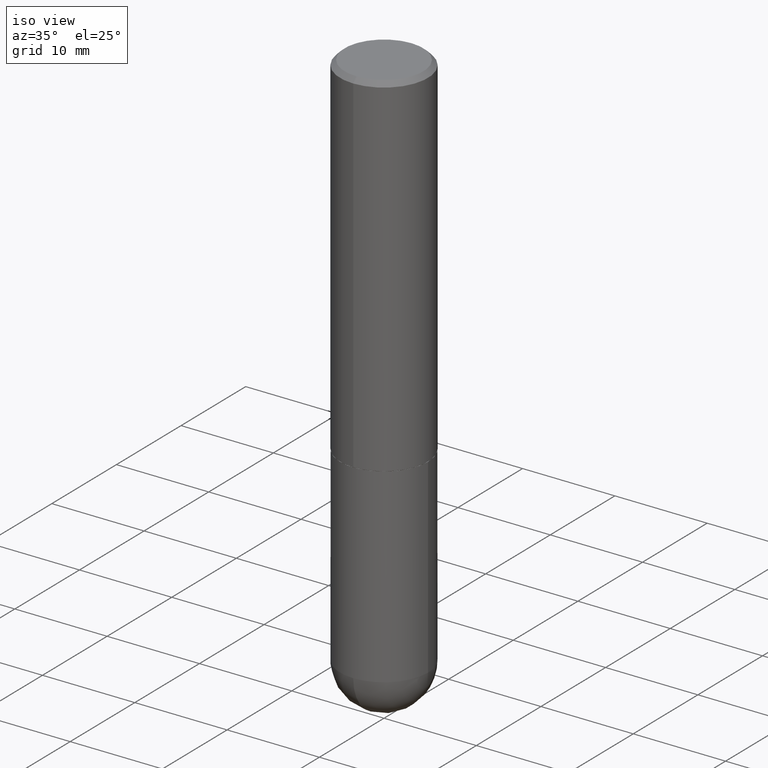
[diagram: clean part render]
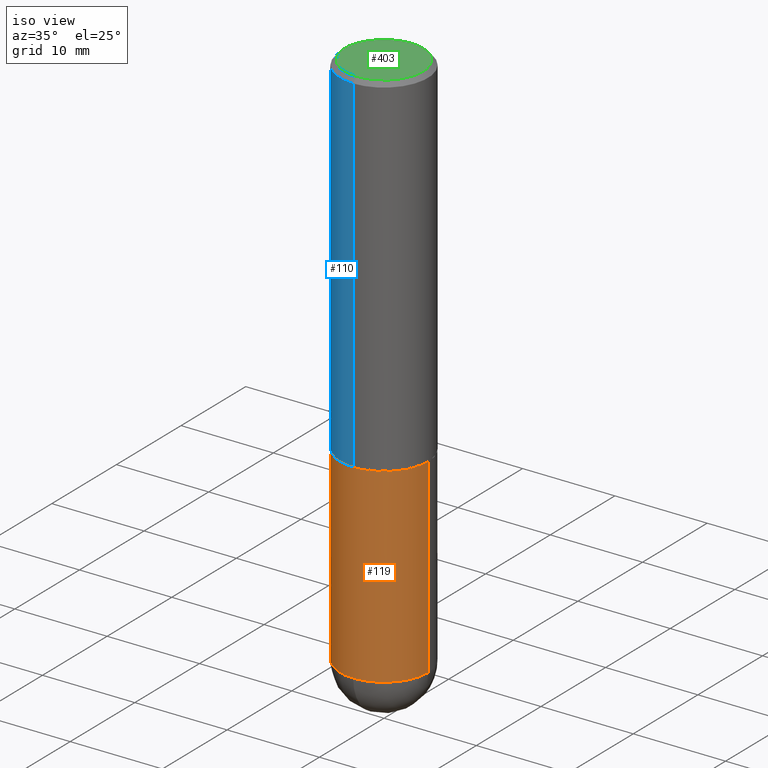
[diagram: same view with three faces highlighted in distinct colors, each labeled with its STEP entity id]
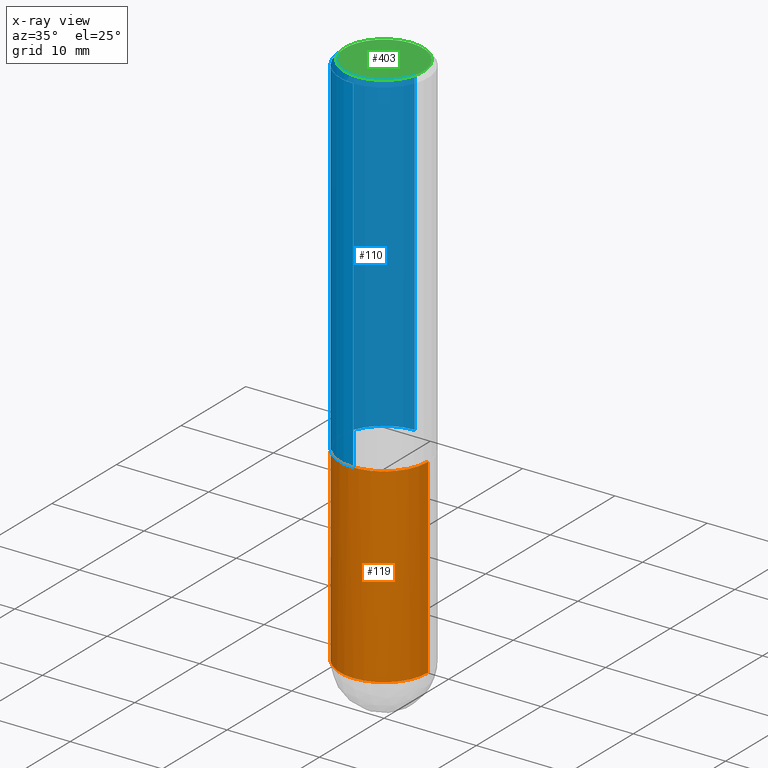
[diagram: x-ray of the same camera — body ghosted, the three highlighted faces saturated]
A machine part, iso view with three faces highlighted in distinct colors.
The next image is the same camera in x-ray (body ghosted, the three faces saturated) — at least one of them is partly hidden behind the body in this view.
Their STEP definitions:

[orange] entity #119 — the highlighted cylindrical surface (partial cylindrical patch) has radius 4.7625 mm, axis along (-0, 0, 1).
#3 = DIRECTION ( 'NONE',  ( 1.000000000000000000, -6.982962677686266711E-15, 0.000000000000000000 ) ) ;
#5 = DIRECTION ( 'NONE',  ( -2.445468806185136597E-29, 3.491481338843145583E-15, 1.000000000000000000 ) ) ;
#14 = ORIENTED_EDGE ( 'NONE', *, *, #309, .T. ) ;
#33 = CARTESIAN_POINT ( 'NONE',  ( -1.332267629550133812E-15, -0.1875000000000084377, -2.312499999999999556 ) ) ;
#34 = VECTOR ( 'NONE', #287, 39.37007874015748143 ) ;
#36 = DIRECTION ( 'NONE',  ( -2.445468806185136597E-29, 3.491481338843145583E-15, 1.000000000000000000 ) ) ;
#40 = CARTESIAN_POINT ( 'NONE',  ( -0.1874999999999999722, -5.323368672619559170E-15, -2.312500000000000000 ) ) ;
#44 = VERTEX_POINT ( 'NONE', #33 ) ;
#50 = VERTEX_POINT ( 'NONE', #92 ) ;
#58 = CARTESIAN_POINT ( 'NONE',  ( 5.655146614303128380E-29, -8.074050596074775072E-15, -2.312500000000000000 ) ) ;
#68 = AXIS2_PLACEMENT_3D ( 'NONE', #212, #145, #146 ) ;
#81 = ORIENTED_EDGE ( 'NONE', *, *, #320, .T. ) ;
#92 = CARTESIAN_POINT ( 'NONE',  ( -0.1875000000000000278, -5.323368672619557593E-15, -1.499999999999999778 ) ) ;
#93 = DIRECTION ( 'NONE',  ( 1.000000000000000000, -6.982962677686263555E-15, 0.000000000000000000 ) ) ;
#114 = AXIS2_PLACEMENT_3D ( 'NONE', #58, #313, #350 ) ;
#119 = ADVANCED_FACE ( 'NONE', ( #366 ), #149, .T. ) ;
#131 = CARTESIAN_POINT ( 'NONE',  ( 0.1875000000000000278, -6.546527510330893185E-15, -1.499999999999999778 ) ) ;
#145 = DIRECTION ( 'NONE',  ( -2.445468806185136597E-29, 3.491481338843145583E-15, 1.000000000000000000 ) ) ;
#146 = DIRECTION ( 'NONE',  ( 1.000000000000000000, -6.982962677686266711E-15, 4.876176775795935793E-29 ) ) ;
#149 = CYLINDRICAL_SURFACE ( 'NONE', #68, 0.1874999999999999722 ) ;
#153 = ORIENTED_EDGE ( 'NONE', *, *, #334, .F. ) ;
#156 = ORIENTED_EDGE ( 'NONE', *, *, #393, .F. ) ;
#160 = AXIS2_PLACEMENT_3D ( 'NONE', #234, #36, #93 ) ;
#195 = CIRCLE ( 'NONE', #215, 0.1875000000000000278 ) ;
#206 = EDGE_LOOP ( 'NONE', ( #156, #208, #14, #81, #153 ) ) ;
#208 = ORIENTED_EDGE ( 'NONE', *, *, #369, .T. ) ;
#212 = CARTESIAN_POINT ( 'NONE',  ( 0.000000000000000000, 0.000000000000000000, 0.000000000000000000 ) ) ;
#215 = AXIS2_PLACEMENT_3D ( 'NONE', #321, #5, #3 ) ;
#234 = CARTESIAN_POINT ( 'NONE',  ( 5.655146614303128380E-29, -8.074050596074775072E-15, -2.312500000000000000 ) ) ;
#261 = LINE ( 'NONE', #266, #324 ) ;
#266 = CARTESIAN_POINT ( 'NONE',  ( 0.1874999999999999722, -1.309305502066174811E-15, 9.142831454617378210E-30 ) ) ;
#270 = VERTEX_POINT ( 'NONE', #131 ) ;
#279 = CIRCLE ( 'NONE', #160, 0.1874999999999999722 ) ;
#285 = VERTEX_POINT ( 'NONE', #410 ) ;
#287 = DIRECTION ( 'NONE',  ( -2.445468806185136877E-29, 3.491481338843145188E-15, 1.000000000000000000 ) ) ;
#292 = DIRECTION ( 'NONE',  ( -2.445468806185136877E-29, 3.491481338843145188E-15, 1.000000000000000000 ) ) ;
#294 = CARTESIAN_POINT ( 'NONE',  ( -0.1874999999999999722, 1.332267629550187651E-15, -9.223003294227946589E-30 ) ) ;
#298 = CIRCLE ( 'NONE', #114, 0.1874999999999999722 ) ;
#309 = EDGE_CURVE ( 'NONE', #44, #285, #298, .T. ) ;
#313 = DIRECTION ( 'NONE',  ( -2.445468806185136597E-29, 3.491481338843145583E-15, 1.000000000000000000 ) ) ;
#320 = EDGE_CURVE ( 'NONE', #285, #270, #261, .T. ) ;
#321 = CARTESIAN_POINT ( 'NONE',  ( 3.668203209277704335E-29, -5.237222008264717388E-15, -1.499999999999999778 ) ) ;
#324 = VECTOR ( 'NONE', #292, 39.37007874015748143 ) ;
#334 = EDGE_CURVE ( 'NONE', #50, #270, #195, .T. ) ;
#341 = VERTEX_POINT ( 'NONE', #40 ) ;
#350 = DIRECTION ( 'NONE',  ( 1.000000000000000000, -6.982962677686263555E-15, 0.000000000000000000 ) ) ;
#366 = FACE_OUTER_BOUND ( 'NONE', #206, .T. ) ;
#369 = EDGE_CURVE ( 'NONE', #341, #44, #279, .T. ) ;
#381 = LINE ( 'NONE', #294, #34 ) ;
#393 = EDGE_CURVE ( 'NONE', #341, #50, #381, .T. ) ;
#410 = CARTESIAN_POINT ( 'NONE',  ( 0.1874999999999999722, -7.964941804235921238E-15, -2.312500000000000000 ) ) ;

[blue] entity #110 — the highlighted cylindrical surface (partial cylindrical patch) has radius 4.7625 mm, axis along (-0, 0, 1).
#2 = ORIENTED_EDGE ( 'NONE', *, *, #16, .F. ) ;
#12 = ORIENTED_EDGE ( 'NONE', *, *, #96, .F. ) ;
#16 = EDGE_CURVE ( 'NONE', #361, #175, #163, .T. ) ;
#17 = CIRCLE ( 'NONE', #411, 0.1874999999999999722 ) ;
#22 = FACE_OUTER_BOUND ( 'NONE', #272, .T. ) ;
#24 = CARTESIAN_POINT ( 'NONE',  ( 4.888475545799278045E-31, -6.986488497148108654E-17, -0.02000000000000003858 ) ) ;
#32 = VECTOR ( 'NONE', #193, 39.37007874015748143 ) ;
#42 = EDGE_CURVE ( 'NONE', #102, #339, #62, .T. ) ;
#62 = LINE ( 'NONE', #256, #32 ) ;
#78 = CARTESIAN_POINT ( 'NONE',  ( 3.663912421576552546E-29, -5.236373128612498345E-15, -1.499000000000000110 ) ) ;
#80 = CARTESIAN_POINT ( 'NONE',  ( -1.309305502066139312E-15, -0.1875000000000053846, -1.498999999999999444 ) ) ;
#87 = DIRECTION ( 'NONE',  ( -2.444237772899634994E-29, 3.493244248574047893E-15, 1.000000000000000000 ) ) ;
#96 = EDGE_CURVE ( 'NONE', #175, #339, #17, .T. ) ;
#102 = VERTEX_POINT ( 'NONE', #80 ) ;
#110 = ADVANCED_FACE ( 'NONE', ( #22 ), #277, .T. ) ;
#122 = VECTOR ( 'NONE', #87, 39.37007874015748143 ) ;
#126 = EDGE_CURVE ( 'NONE', #361, #102, #385, .T. ) ;
#138 = ORIENTED_EDGE ( 'NONE', *, *, #126, .T. ) ;
#159 = CARTESIAN_POINT ( 'NONE',  ( 1.332267629550207176E-15, 0.1874999999999949207, -1.499000000000000554 ) ) ;
#163 = LINE ( 'NONE', #408, #122 ) ;
#175 = VERTEX_POINT ( 'NONE', #407 ) ;
#186 = AXIS2_PLACEMENT_3D ( 'NONE', #252, #308, #402 ) ;
#189 = ORIENTED_EDGE ( 'NONE', *, *, #42, .T. ) ;
#193 = DIRECTION ( 'NONE',  ( -2.444237772899634994E-29, 3.493244248574047893E-15, 1.000000000000000000 ) ) ;
#216 = DIRECTION ( 'NONE',  ( -2.444237772899634714E-29, 3.493244248574047893E-15, 1.000000000000000000 ) ) ;
#236 = AXIS2_PLACEMENT_3D ( 'NONE', #78, #216, #371 ) ;
#251 = DIRECTION ( 'NONE',  ( -6.982962677686266711E-15, -1.000000000000000000, 3.483106191921935949E-15 ) ) ;
#252 = CARTESIAN_POINT ( 'NONE',  ( 0.000000000000000000, 0.000000000000000000, 0.000000000000000000 ) ) ;
#256 = CARTESIAN_POINT ( 'NONE',  ( -1.309305502066175205E-15, -0.1875000000000000555, 6.549832966076341771E-16 ) ) ;
#272 = EDGE_LOOP ( 'NONE', ( #2, #138, #189, #12 ) ) ;
#277 = CYLINDRICAL_SURFACE ( 'NONE', #186, 0.1875000000000000555 ) ;
#308 = DIRECTION ( 'NONE',  ( -2.444237772899634714E-29, 3.493244248574047893E-15, 1.000000000000000000 ) ) ;
#339 = VERTEX_POINT ( 'NONE', #382 ) ;
#340 = DIRECTION ( 'NONE',  ( -2.444237772899634714E-29, 3.493244248574047893E-15, 1.000000000000000000 ) ) ;
#361 = VERTEX_POINT ( 'NONE', #159 ) ;
#371 = DIRECTION ( 'NONE',  ( -6.982962677686266711E-15, -1.000000000000000000, 2.913971193241878794E-15 ) ) ;
#382 = CARTESIAN_POINT ( 'NONE',  ( -1.286343374582161379E-15, -0.1875000000000000555, -0.01999999999999938632 ) ) ;
#385 = CIRCLE ( 'NONE', #236, 0.1875000000000001388 ) ;
#402 = DIRECTION ( 'NONE',  ( -6.982962677686265922E-15, -1.000000000000000000, 3.493244248574047893E-15 ) ) ;
#407 = CARTESIAN_POINT ( 'NONE',  ( 1.309305502066175205E-15, 0.1874999999999999167, -0.02000000000000069084 ) ) ;
#408 = CARTESIAN_POINT ( 'NONE',  ( 1.332267629550188046E-15, 0.1875000000000000555, -6.549832966076341771E-16 ) ) ;
#411 = AXIS2_PLACEMENT_3D ( 'NONE', #24, #340, #251 ) ;

[green] entity #403 — the highlighted planar face has unit normal (0, -0, -1).
#8 = DIRECTION ( 'NONE',  ( 6.982962677686265922E-15, 1.000000000000000000, -3.493244248574047893E-15 ) ) ;
#27 = EDGE_CURVE ( 'NONE', #228, #108, #61, .T. ) ;
#60 = DIRECTION ( 'NONE',  ( -6.982962677686266711E-15, -1.000000000000000000, 3.493244248574047893E-15 ) ) ;
#61 = CIRCLE ( 'NONE', #293, 0.1674999999999999545 ) ;
#66 = PLANE ( 'NONE',  #268 ) ;
#83 = EDGE_LOOP ( 'NONE', ( #405, #395 ) ) ;
#108 = VERTEX_POINT ( 'NONE', #224 ) ;
#112 = CARTESIAN_POINT ( 'NONE',  ( 1.239475875289312499E-15, 0.1674999999999999545, -5.592120493156243082E-16 ) ) ;
#113 = AXIS2_PLACEMENT_3D ( 'NONE', #265, #123, #60 ) ;
#123 = DIRECTION ( 'NONE',  ( -2.444237772899634714E-29, 3.493244248574047893E-15, 1.000000000000000000 ) ) ;
#128 = DIRECTION ( 'NONE',  ( -6.982962677686266711E-15, -1.000000000000000000, 3.493244248574047893E-15 ) ) ;
#130 = DIRECTION ( 'NONE',  ( -2.444237772899634714E-29, 3.493244248574047893E-15, 1.000000000000000000 ) ) ;
#197 = DIRECTION ( 'NONE',  ( 2.444237772899634153E-29, -3.493244248574047893E-15, -1.000000000000000000 ) ) ;
#224 = CARTESIAN_POINT ( 'NONE',  ( -1.217738394604446442E-15, -0.1674999999999999545, 6.110247739566814046E-16 ) ) ;
#228 = VERTEX_POINT ( 'NONE', #112 ) ;
#265 = CARTESIAN_POINT ( 'NONE',  ( -6.332130934225978108E-46, 9.049725117766187729E-32, 2.590636232052857901E-17 ) ) ;
#268 = AXIS2_PLACEMENT_3D ( 'NONE', #355, #197, #8 ) ;
#275 = EDGE_CURVE ( 'NONE', #108, #228, #297, .T. ) ;
#291 = CARTESIAN_POINT ( 'NONE',  ( -6.332130934225978108E-46, 9.049725117766187729E-32, 2.590636232052857901E-17 ) ) ;
#293 = AXIS2_PLACEMENT_3D ( 'NONE', #291, #130, #128 ) ;
#297 = CIRCLE ( 'NONE', #113, 0.1674999999999999545 ) ;
#355 = CARTESIAN_POINT ( 'NONE',  ( 1.169646248512449398E-15, 0.1674999999999999545, -5.721652304758885823E-16 ) ) ;
#383 = FACE_OUTER_BOUND ( 'NONE', #83, .T. ) ;
#395 = ORIENTED_EDGE ( 'NONE', *, *, #275, .T. ) ;
#403 = ADVANCED_FACE ( 'NONE', ( #383 ), #66, .F. ) ;
#405 = ORIENTED_EDGE ( 'NONE', *, *, #27, .T. ) ;